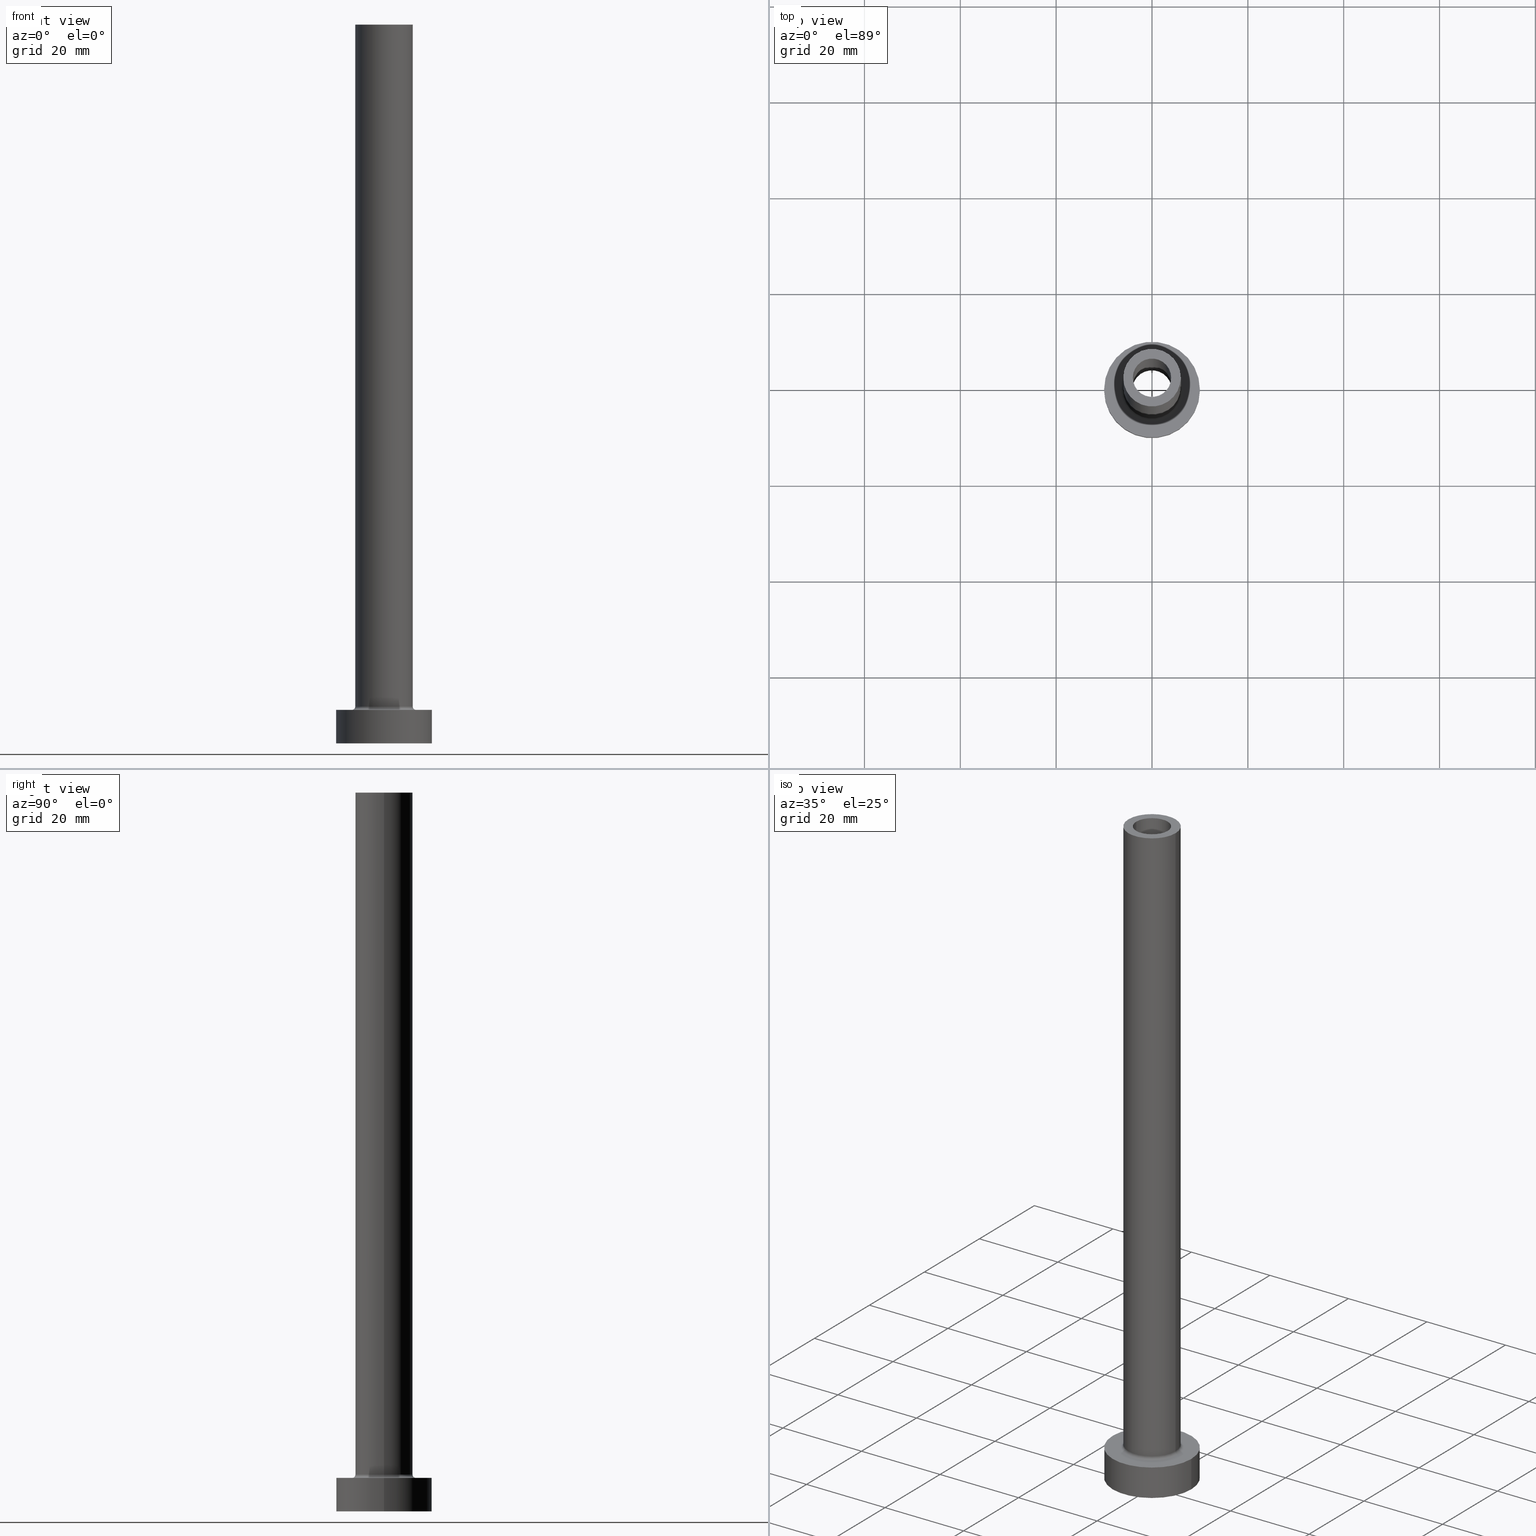
[diagram: canonical four-view strip — front | top / right | iso, engineering-drawing reading convention]
A machine part, canonical four-view strip (front | top / right | iso — engineering-drawing reading convention). The complete STEP part file that produces these views, byte-faithful:
ISO-10303-21;
HEADER;
FILE_DESCRIPTION (( 'STEP AP203' ),
    '1' );
FILE_NAME ('ed72.STEP',
    '2023-02-13T12:46:41',
    ( '' ),
    ( '' ),
    'SwSTEP 2.0',
    'SolidWorks 2019',
    '' );
FILE_SCHEMA (( 'CONFIG_CONTROL_DESIGN' ));
ENDSEC;

DATA;
#1 = APPROVAL_PERSON_ORGANIZATION ( #349, #103, #169 ) ;
#2 = CARTESIAN_POINT ( 'NONE',  ( 0.000000000000000000, 0.000000000000000000, 150.0000000000000000 ) ) ;
#3 = VERTEX_POINT ( 'NONE', #352 ) ;
#4 = DIRECTION ( 'NONE',  ( 0.000000000000000000, 0.000000000000000000, 1.000000000000000000 ) ) ;
#5 = CARTESIAN_POINT ( 'NONE',  ( -4.150000000000000355, 0.000000000000000000, 0.000000000000000000 ) ) ;
#6 = ORIENTED_EDGE ( 'NONE', *, *, #261, .T. ) ;
#7 = CARTESIAN_POINT ( 'NONE',  ( 0.000000000000000000, 0.000000000000000000, 7.000000000000000000 ) ) ;
#8 = ORIENTED_EDGE ( 'NONE', *, *, #261, .F. ) ;
#9 = DIRECTION ( 'NONE',  ( 0.000000000000000000, 0.000000000000000000, 1.000000000000000000 ) ) ;
#10 = LINE ( 'NONE', #255, #165 ) ;
#11 = ORIENTED_EDGE ( 'NONE', *, *, #305, .T. ) ;
#12 = SHAPE_DEFINITION_REPRESENTATION ( #25, #225 ) ;
#13 = CALENDAR_DATE ( 2023, 13, 2 ) ;
#14 = AXIS2_PLACEMENT_3D ( 'NONE', #163, #100, #298 ) ;
#15 = EDGE_LOOP ( 'NONE', ( #11, #417 ) ) ;
#16 = EDGE_CURVE ( 'NONE', #354, #322, #129, .T. ) ;
#17 = CARTESIAN_POINT ( 'NONE',  ( 0.000000000000000000, 0.000000000000000000, 0.000000000000000000 ) ) ;
#18 = APPLICATION_CONTEXT ( 'configuration controlled 3d designs of mechanical parts and assemblies' ) ;
#19 = VERTEX_POINT ( 'NONE', #204 ) ;
#20 = ORIENTED_EDGE ( 'NONE', *, *, #192, .F. ) ;
#21 = DIRECTION ( 'NONE',  ( 0.000000000000000000, 0.000000000000000000, -1.000000000000000000 ) ) ;
#22 = CARTESIAN_POINT ( 'NONE',  ( -4.000000000000000000, 0.000000000000000000, 105.0000000000000000 ) ) ;
#23 = EDGE_CURVE ( 'NONE', #72, #382, #350, .T. ) ;
#24 = CARTESIAN_POINT ( 'NONE',  ( 0.000000000000000000, 0.000000000000000000, 7.000000000000000000 ) ) ;
#25 = PRODUCT_DEFINITION_SHAPE ( 'NONE', 'NONE',  #162 ) ;
#26 = DIRECTION ( 'NONE',  ( 0.000000000000000000, 0.000000000000000000, -1.000000000000000000 ) ) ;
#27 = AXIS2_PLACEMENT_3D ( 'NONE', #217, #134, #176 ) ;
#28 = ORIENTED_EDGE ( 'NONE', *, *, #71, .F. ) ;
#29 = CARTESIAN_POINT ( 'NONE',  ( 0.000000000000000000, 0.000000000000000000, 7.000000000000000000 ) ) ;
#30 = DIRECTION ( 'NONE',  ( 1.000000000000000000, 0.000000000000000000, 0.000000000000000000 ) ) ;
#31 = FACE_OUTER_BOUND ( 'NONE', #420, .T. ) ;
#32 = CARTESIAN_POINT ( 'NONE',  ( 0.000000000000000000, 0.000000000000000000, 7.700000000000012612 ) ) ;
#33 = EDGE_LOOP ( 'NONE', ( #325, #45, #323, #391 ) ) ;
#34 = DIRECTION ( 'NONE',  ( 1.000000000000000000, 0.000000000000000000, 0.000000000000000000 ) ) ;
#35 = AXIS2_PLACEMENT_3D ( 'NONE', #131, #99, #448 ) ;
#36 = FACE_OUTER_BOUND ( 'NONE', #105, .T. ) ;
#37 = CC_DESIGN_PERSON_AND_ORGANIZATION_ASSIGNMENT ( #128, #269, ( #162 ) ) ;
#38 = ORIENTED_EDGE ( 'NONE', *, *, #439, .F. ) ;
#39 = LOCAL_TIME ( 13, 46, 41.00000000000000000, #185 ) ;
#40 = CARTESIAN_POINT ( 'NONE',  ( 0.000000000000000000, 0.000000000000000000, 105.0000000000000000 ) ) ;
#41 = EDGE_LOOP ( 'NONE', ( #342, #46, #203, #433 ) ) ;
#42 = DIRECTION ( 'NONE',  ( 0.000000000000000000, 0.000000000000000000, 1.000000000000000000 ) ) ;
#43 = DIRECTION ( 'NONE',  ( 0.000000000000000000, 0.000000000000000000, 1.000000000000000000 ) ) ;
#44 = DIRECTION ( 'NONE',  ( 1.000000000000000000, 0.000000000000000000, 0.000000000000000000 ) ) ;
#45 = ORIENTED_EDGE ( 'NONE', *, *, #95, .T. ) ;
#46 = ORIENTED_EDGE ( 'NONE', *, *, #244, .T. ) ;
#47 = CARTESIAN_POINT ( 'NONE',  ( 4.150000000000000355, 5.082284216461515156E-16, 105.0000000000000000 ) ) ;
#48 = FACE_OUTER_BOUND ( 'NONE', #33, .T. ) ;
#49 = ORIENTED_EDGE ( 'NONE', *, *, #23, .F. ) ;
#50 = CYLINDRICAL_SURFACE ( 'NONE', #158, 10.00000000000000000 ) ;
#51 = AXIS2_PLACEMENT_3D ( 'NONE', #40, #4, #61 ) ;
#52 = EDGE_CURVE ( 'NONE', #358, #214, #456, .T. ) ;
#53 = ORIENTED_EDGE ( 'NONE', *, *, #244, .F. ) ;
#54 = FACE_OUTER_BOUND ( 'NONE', #208, .T. ) ;
#55 = DATE_AND_TIME ( #13, #279 ) ;
#56 = CC_DESIGN_DATE_AND_TIME_ASSIGNMENT ( #419, #387, ( #162 ) ) ;
#57 = LINE ( 'NONE', #193, #309 ) ;
#58 = ADVANCED_FACE ( 'NONE', ( #355, #137 ), #170, .T. ) ;
#59 = DESIGN_CONTEXT ( 'detailed design', #109, 'design' ) ;
#60 = DIRECTION ( 'NONE',  ( 1.000000000000000000, 0.000000000000000000, 0.000000000000000000 ) ) ;
#61 = DIRECTION ( 'NONE',  ( 1.000000000000000000, 0.000000000000000000, -0.000000000000000000 ) ) ;
#62 = PERSON_AND_ORGANIZATION_ROLE ( 'design_supplier' ) ;
#63 = ORIENTED_EDGE ( 'NONE', *, *, #413, .F. ) ;
#64 = DIRECTION ( 'NONE',  ( -0.000000000000000000, -0.000000000000000000, -1.000000000000000000 ) ) ;
#65 = AXIS2_PLACEMENT_3D ( 'NONE', #29, #64, #125 ) ;
#66 = APPROVAL_PERSON_ORGANIZATION ( #206, #430, #290 ) ;
#67 = ORIENTED_EDGE ( 'NONE', *, *, #361, .F. ) ;
#68 = LINE ( 'NONE', #451, #195 ) ;
#69 = VERTEX_POINT ( 'NONE', #229 ) ;
#70 = DIRECTION ( 'NONE',  ( -0.000000000000000000, -0.000000000000000000, -1.000000000000000000 ) ) ;
#71 = EDGE_CURVE ( 'NONE', #214, #316, #10, .T. ) ;
#72 = VERTEX_POINT ( 'NONE', #294 ) ;
#73 = EDGE_LOOP ( 'NONE', ( #67, #411, #428, #312 ) ) ;
#74 = DIRECTION ( 'NONE',  ( 0.000000000000000000, 0.000000000000000000, 1.000000000000000000 ) ) ;
#75 = CARTESIAN_POINT ( 'NONE',  ( 0.000000000000000000, 0.000000000000000000, 150.0000000000000000 ) ) ;
#76 = VERTEX_POINT ( 'NONE', #384 ) ;
#77 = CYLINDRICAL_SURFACE ( 'NONE', #27, 4.150000000000000355 ) ;
#78 = DIRECTION ( 'NONE',  ( 1.000000000000000000, 0.000000000000000000, 0.000000000000000000 ) ) ;
#79 = DIRECTION ( 'NONE',  ( 0.000000000000000000, 0.000000000000000000, -1.000000000000000000 ) ) ;
#80 = VECTOR ( 'NONE', #200, 1000.000000000000000 ) ;
#81 = DIRECTION ( 'NONE',  ( 0.000000000000000000, 0.000000000000000000, 1.000000000000000000 ) ) ;
#82 = PERSON_AND_ORGANIZATION ( #235, #181 ) ;
#83 = CC_DESIGN_PERSON_AND_ORGANIZATION_ASSIGNMENT ( #82, #62, ( #123 ) ) ;
#84 = ORIENTED_EDGE ( 'NONE', *, *, #305, .F. ) ;
#85 = DIRECTION ( 'NONE',  ( 0.000000000000000000, 0.000000000000000000, -1.000000000000000000 ) ) ;
#86 = CALENDAR_DATE ( 2023, 13, 2 ) ;
#87 = CARTESIAN_POINT ( 'NONE',  ( -4.150000000000000355, 0.000000000000000000, 116.7379725676966729 ) ) ;
#88 = AXIS2_PLACEMENT_3D ( 'NONE', #7, #70, #455 ) ;
#89 = VERTEX_POINT ( 'NONE', #457 ) ;
#90 = LOCAL_TIME ( 13, 46, 41.00000000000000000, #132 ) ;
#91 = CARTESIAN_POINT ( 'NONE',  ( 0.000000000000000000, 0.000000000000000000, 150.0000000000000000 ) ) ;
#92 = ORIENTED_EDGE ( 'NONE', *, *, #145, .T. ) ;
#93 = AXIS2_PLACEMENT_3D ( 'NONE', #280, #250, #216 ) ;
#94 = CARTESIAN_POINT ( 'NONE',  ( 0.000000000000000000, 0.000000000000000000, 150.0000000000000000 ) ) ;
#95 = EDGE_CURVE ( 'NONE', #273, #322, #367, .T. ) ;
#96 = AXIS2_PLACEMENT_3D ( 'NONE', #380, #199, #301 ) ;
#97 = CARTESIAN_POINT ( 'NONE',  ( -10.00000000000000000, 0.000000000000000000, 7.000000000000000000 ) ) ;
#98 = ADVANCED_FACE ( 'NONE', ( #31 ), #166, .F. ) ;
#99 = DIRECTION ( 'NONE',  ( 1.224646799147353207E-16, 1.000000000000000000, -0.000000000000000000 ) ) ;
#100 = DIRECTION ( 'NONE',  ( 0.000000000000000000, 0.000000000000000000, 1.000000000000000000 ) ) ;
#101 = CALENDAR_DATE ( 2023, 13, 2 ) ;
#102 = ORIENTED_EDGE ( 'NONE', *, *, #160, .T. ) ;
#103 = APPROVAL ( #454, 'NEUR�EN�' ) ;
#104 = MECHANICAL_CONTEXT ( 'NONE', #18, 'mechanical' ) ;
#105 = EDGE_LOOP ( 'NONE', ( #175, #383 ) ) ;
#106 = DIRECTION ( 'NONE',  ( 1.000000000000000000, 0.000000000000000000, -0.000000000000000000 ) ) ;
#107 = DATE_AND_TIME ( #168, #249 ) ;
#108 = DIRECTION ( 'NONE',  ( 0.000000000000000000, 0.000000000000000000, 1.000000000000000000 ) ) ;
#109 = APPLICATION_CONTEXT ( 'configuration controlled 3d designs of mechanical parts and assemblies' ) ;
#110 = CIRCLE ( 'NONE', #363, 6.000000000000000888 ) ;
#111 = DIRECTION ( 'NONE',  ( 1.000000000000000000, 0.000000000000000000, 0.000000000000000000 ) ) ;
#112 = EDGE_LOOP ( 'NONE', ( #228, #396, #222, #63 ) ) ;
#113 = CC_DESIGN_PERSON_AND_ORGANIZATION_ASSIGNMENT ( #231, #371, ( #123 ) ) ;
#114 = CIRCLE ( 'NONE', #119, 4.150000000000000355 ) ;
#115 = AXIS2_PLACEMENT_3D ( 'NONE', #319, #246, #139 ) ;
#116 = ORIENTED_EDGE ( 'NONE', *, *, #138, .F. ) ;
#117 = PERSON_AND_ORGANIZATION_ROLE ( 'classification_officer' ) ;
#118 = CARTESIAN_POINT ( 'NONE',  ( 0.000000000000000000, 0.000000000000000000, 0.000000000000000000 ) ) ;
#119 = AXIS2_PLACEMENT_3D ( 'NONE', #317, #42, #78 ) ;
#120 = CYLINDRICAL_SURFACE ( 'NONE', #345, 4.000000000000000000 ) ;
#121 = DIRECTION ( 'NONE',  ( 1.000000000000000000, 0.000000000000000000, 0.000000000000000000 ) ) ;
#122 = DIRECTION ( 'NONE',  ( 1.000000000000000000, 0.000000000000000000, 0.000000000000000000 ) ) ;
#123 = PRODUCT_DEFINITION_FORMATION_WITH_SPECIFIED_SOURCE ( 'LIBOVOLN�', '', #442, .NOT_KNOWN. ) ;
#124 = ADVANCED_FACE ( 'NONE', ( #223 ), #277, .T. ) ;
#125 = DIRECTION ( 'NONE',  ( -1.000000000000000000, 0.000000000000000000, 0.000000000000000000 ) ) ;
#126 = DIRECTION ( 'NONE',  ( 0.000000000000000000, 0.000000000000000000, 1.000000000000000000 ) ) ;
#127 = APPROVAL ( #366, 'NEUR�EN�' ) ;
#128 = PERSON_AND_ORGANIZATION ( #235, #181 ) ;
#129 = CIRCLE ( 'NONE', #88, 6.700000000000001066 ) ;
#130 = DIRECTION ( 'NONE',  ( -1.000000000000000000, 0.000000000000000000, 0.000000000000000000 ) ) ;
#131 = CARTESIAN_POINT ( 'NONE',  ( -6.700000000000001066, 8.205133554287267548E-16, 7.700000000000012612 ) ) ;
#132 = COORDINATED_UNIVERSAL_TIME_OFFSET ( 1, 0, .AHEAD. ) ;
#133 = AXIS2_PLACEMENT_3D ( 'NONE', #2, #108, #314 ) ;
#134 = DIRECTION ( 'NONE',  ( 0.000000000000000000, 0.000000000000000000, -1.000000000000000000 ) ) ;
#135 = APPLICATION_PROTOCOL_DEFINITION ( 'international standard', 'config_control_design', 1994, #109 ) ;
#136 = DIRECTION ( 'NONE',  ( -0.000000000000000000, -0.000000000000000000, -1.000000000000000000 ) ) ;
#137 = FACE_OUTER_BOUND ( 'NONE', #179, .T. ) ;
#138 = EDGE_CURVE ( 'NONE', #382, #89, #164, .T. ) ;
#139 = DIRECTION ( 'NONE',  ( 1.000000000000000000, 0.000000000000000000, 0.000000000000000000 ) ) ;
#140 = AXIS2_PLACEMENT_3D ( 'NONE', #91, #336, #60 ) ;
#141 = CIRCLE ( 'NONE', #370, 4.000000000000000000 ) ;
#142 = EDGE_LOOP ( 'NONE', ( #360, #147 ) ) ;
#143 = ADVANCED_FACE ( 'NONE', ( #48 ), #353, .F. ) ;
#144 = CARTESIAN_POINT ( 'NONE',  ( 0.000000000000000000, 0.000000000000000000, 105.0000000000000000 ) ) ;
#145 = EDGE_CURVE ( 'NONE', #273, #19, #416, .T. ) ;
#146 = FACE_BOUND ( 'NONE', #304, .T. ) ;
#147 = ORIENTED_EDGE ( 'NONE', *, *, #459, .F. ) ;
#148 = CC_DESIGN_APPROVAL ( #430, ( #123 ) ) ;
#149 = CARTESIAN_POINT ( 'NONE',  ( 0.000000000000000000, 0.000000000000000000, 116.7379725676966729 ) ) ;
#150 = DATE_AND_TIME ( #86, #39 ) ;
#151 = DIRECTION ( 'NONE',  ( 1.000000000000000000, 0.000000000000000000, 0.000000000000000000 ) ) ;
#152 = CARTESIAN_POINT ( 'NONE',  ( 10.00000000000000000, 1.224646799147353256E-15, 0.000000000000000000 ) ) ;
#153 = DIRECTION ( 'NONE',  ( 0.000000000000000000, -1.000000000000000000, 0.000000000000000000 ) ) ;
#154 = APPROVAL_ROLE ( '' ) ;
#155 = DIRECTION ( 'NONE',  ( 1.000000000000000000, 0.000000000000000000, -0.000000000000000000 ) ) ;
#156 = ORIENTED_EDGE ( 'NONE', *, *, #439, .T. ) ;
#157 = AXIS2_PLACEMENT_3D ( 'NONE', #264, #153, #260 ) ;
#158 = AXIS2_PLACEMENT_3D ( 'NONE', #209, #136, #274 ) ;
#159 = CARTESIAN_POINT ( 'NONE',  ( -10.00000000000000000, 0.000000000000000000, 0.000000000000000000 ) ) ;
#160 = EDGE_CURVE ( 'NONE', #316, #452, #385, .T. ) ;
#161 = DIRECTION ( 'NONE',  ( 0.000000000000000000, 0.000000000000000000, 1.000000000000000000 ) ) ;
#162 = PRODUCT_DEFINITION ( 'NEZN�M�', '', #123, #59 ) ;
#163 = CARTESIAN_POINT ( 'NONE',  ( 0.000000000000000000, 0.000000000000000000, 7.700000000000012612 ) ) ;
#164 = CIRCLE ( 'NONE', #431, 4.000000000000000000 ) ;
#165 = VECTOR ( 'NONE', #79, 1000.000000000000000 ) ;
#166 = CYLINDRICAL_SURFACE ( 'NONE', #285, 4.000000000000000000 ) ;
#167 = SECURITY_CLASSIFICATION ( '', '', #190 ) ;
#168 = CALENDAR_DATE ( 2023, 13, 2 ) ;
#169 = APPROVAL_ROLE ( '' ) ;
#170 = PLANE ( 'NONE',  #375 ) ;
#171 = AXIS2_PLACEMENT_3D ( 'NONE', #205, #449, #122 ) ;
#172 = EDGE_CURVE ( 'NONE', #69, #267, #265, .T. ) ;
#173 = CIRCLE ( 'NONE', #115, 6.700000000000001066 ) ;
#174 = CARTESIAN_POINT ( 'NONE',  ( 0.000000000000000000, 0.000000000000000000, 105.0000000000000000 ) ) ;
#175 = ORIENTED_EDGE ( 'NONE', *, *, #52, .F. ) ;
#176 = DIRECTION ( 'NONE',  ( -1.000000000000000000, 0.000000000000000000, 0.000000000000000000 ) ) ;
#177 = ORIENTED_EDGE ( 'NONE', *, *, #207, .F. ) ;
#178 = DIRECTION ( 'NONE',  ( 0.000000000000000000, 0.000000000000000000, 1.000000000000000000 ) ) ;
#179 = EDGE_LOOP ( 'NONE', ( #156, #302 ) ) ;
#180 = AXIS2_PLACEMENT_3D ( 'NONE', #17, #374, #155 ) ;
#181 = ORGANIZATION ( 'NEUR�EN�', 'NEUR�EN�', '' ) ;
#182 = EDGE_LOOP ( 'NONE', ( #232, #407 ) ) ;
#183 = DIRECTION ( 'NONE',  ( 1.000000000000000000, 0.000000000000000000, 0.000000000000000000 ) ) ;
#184 = ORIENTED_EDGE ( 'NONE', *, *, #390, .T. ) ;
#185 = COORDINATED_UNIVERSAL_TIME_OFFSET ( 1, 0, .AHEAD. ) ;
#186 = DIRECTION ( 'NONE',  ( -0.000000000000000000, -0.000000000000000000, -1.000000000000000000 ) ) ;
#187 = AXIS2_PLACEMENT_3D ( 'NONE', #174, #74, #34 ) ;
#188 = CARTESIAN_POINT ( 'NONE',  ( -4.150000000000000355, 0.000000000000000000, 105.0000000000000000 ) ) ;
#189 = CARTESIAN_POINT ( 'NONE',  ( 0.000000000000000000, 0.000000000000000000, 150.0000000000000000 ) ) ;
#190 = SECURITY_CLASSIFICATION_LEVEL ( 'unclassified' ) ;
#191 = LINE ( 'NONE', #412, #202 ) ;
#192 = EDGE_CURVE ( 'NONE', #253, #381, #343, .T. ) ;
#193 = CARTESIAN_POINT ( 'NONE',  ( -6.000000000000000888, 0.000000000000000000, 150.0000000000000000 ) ) ;
#194 = AXIS2_PLACEMENT_3D ( 'NONE', #32, #126, #30 ) ;
#195 = VECTOR ( 'NONE', #348, 1000.000000000000000 ) ;
#196 = AXIS2_PLACEMENT_3D ( 'NONE', #75, #9, #213 ) ;
#197 = CARTESIAN_POINT ( 'NONE',  ( 4.150000000000000355, 5.082284216461515156E-16, 0.000000000000000000 ) ) ;
#198 = CARTESIAN_POINT ( 'NONE',  ( 0.000000000000000000, 0.000000000000000000, 105.0000000000000000 ) ) ;
#199 = DIRECTION ( 'NONE',  ( 0.000000000000000000, 0.000000000000000000, 1.000000000000000000 ) ) ;
#200 = DIRECTION ( 'NONE',  ( -0.000000000000000000, -0.000000000000000000, -1.000000000000000000 ) ) ;
#201 = ORIENTED_EDGE ( 'NONE', *, *, #341, .T. ) ;
#202 = VECTOR ( 'NONE', #335, 1000.000000000000000 ) ;
#203 = ORIENTED_EDGE ( 'NONE', *, *, #405, .T. ) ;
#204 = CARTESIAN_POINT ( 'NONE',  ( 6.000000000000000888, 7.347880794884120722E-16, 7.700000000000012612 ) ) ;
#205 = CARTESIAN_POINT ( 'NONE',  ( 0.000000000000000000, 0.000000000000000000, 0.000000000000000000 ) ) ;
#206 = PERSON_AND_ORGANIZATION ( #235, #181 ) ;
#207 = EDGE_CURVE ( 'NONE', #267, #381, #247, .T. ) ;
#208 = EDGE_LOOP ( 'NONE', ( #28, #201, #6, #184 ) ) ;
#209 = CARTESIAN_POINT ( 'NONE',  ( 0.000000000000000000, 0.000000000000000000, 7.000000000000000000 ) ) ;
#210 = ORIENTED_EDGE ( 'NONE', *, *, #413, .T. ) ;
#211 = PLANE ( 'NONE',  #51 ) ;
#212 = CC_DESIGN_PERSON_AND_ORGANIZATION_ASSIGNMENT ( #334, #117, ( #167 ) ) ;
#213 = DIRECTION ( 'NONE',  ( 1.000000000000000000, 0.000000000000000000, 0.000000000000000000 ) ) ;
#214 = VERTEX_POINT ( 'NONE', #47 ) ;
#215 = ADVANCED_FACE ( 'NONE', ( #146, #234 ), #410, .F. ) ;
#216 = DIRECTION ( 'NONE',  ( -1.000000000000000000, 0.000000000000000000, 0.000000000000000000 ) ) ;
#217 = CARTESIAN_POINT ( 'NONE',  ( 0.000000000000000000, 0.000000000000000000, 116.7379725676966729 ) ) ;
#218 = EDGE_CURVE ( 'NONE', #19, #354, #338, .T. ) ;
#219 = AXIS2_PLACEMENT_3D ( 'NONE', #189, #453, #130 ) ;
#220 = AXIS2_PLACEMENT_3D ( 'NONE', #149, #85, #368 ) ;
#221 = CARTESIAN_POINT ( 'NONE',  ( 0.000000000000000000, 0.000000000000000000, 7.000000000000000000 ) ) ;
#222 = ORIENTED_EDGE ( 'NONE', *, *, #23, .T. ) ;
#223 = FACE_OUTER_BOUND ( 'NONE', #41, .T. ) ;
#224 = EDGE_CURVE ( 'NONE', #315, #273, #57, .T. ) ;
#225 = ADVANCED_BREP_SHAPE_REPRESENTATION ( 'ed72', ( #306, #434 ), #330 ) ;
#226 = FACE_OUTER_BOUND ( 'NONE', #398, .T. ) ;
#227 = FACE_OUTER_BOUND ( 'NONE', #400, .T. ) ;
#228 = ORIENTED_EDGE ( 'NONE', *, *, #321, .F. ) ;
#229 = CARTESIAN_POINT ( 'NONE',  ( -10.00000000000000000, 0.000000000000000000, 7.000000000000000000 ) ) ;
#230 = CC_DESIGN_APPROVAL ( #127, ( #167 ) ) ;
#231 = PERSON_AND_ORGANIZATION ( #235, #181 ) ;
#232 = ORIENTED_EDGE ( 'NONE', *, *, #16, .T. ) ;
#233 = ADVANCED_FACE ( 'NONE', ( #263 ), #120, .F. ) ;
#234 = FACE_OUTER_BOUND ( 'NONE', #329, .T. ) ;
#235 = PERSON ( 'NEUR�EN�', 'NEUR�EN�', 'NEUR�EN�', ('NEUR�EN�'), ('NEUR�EN�'), ('NEUR�EN�') ) ;
#236 = VECTOR ( 'NONE', #422, 1000.000000000000000 ) ;
#237 = CARTESIAN_POINT ( 'NONE',  ( 0.000000000000000000, 0.000000000000000000, 150.0000000000000000 ) ) ;
#238 = AXIS2_PLACEMENT_3D ( 'NONE', #357, #43, #313 ) ;
#239 = CC_DESIGN_SECURITY_CLASSIFICATION ( #167, ( #123 ) ) ;
#240 = EDGE_CURVE ( 'NONE', #72, #76, #318, .T. ) ;
#241 = TOROIDAL_SURFACE ( 'NONE', #460, 6.700000000000001066, 0.6999999999999999556 ) ;
#242 = FACE_OUTER_BOUND ( 'NONE', #331, .T. ) ;
#243 = FACE_OUTER_BOUND ( 'NONE', #73, .T. ) ;
#244 = EDGE_CURVE ( 'NONE', #3, #19, #191, .T. ) ;
#245 = FACE_BOUND ( 'NONE', #418, .T. ) ;
#246 = DIRECTION ( 'NONE',  ( -0.000000000000000000, -0.000000000000000000, -1.000000000000000000 ) ) ;
#247 = CIRCLE ( 'NONE', #238, 10.00000000000000000 ) ;
#248 = CIRCLE ( 'NONE', #133, 6.000000000000000888 ) ;
#249 = LOCAL_TIME ( 13, 46, 41.00000000000000000, #427 ) ;
#250 = DIRECTION ( 'NONE',  ( -0.000000000000000000, -0.000000000000000000, -1.000000000000000000 ) ) ;
#251 = CARTESIAN_POINT ( 'NONE',  ( 10.00000000000000000, 1.224646799147353256E-15, 7.000000000000000000 ) ) ;
#252 = APPLICATION_PROTOCOL_DEFINITION ( 'international standard', 'config_control_design', 1994, #18 ) ;
#253 = VERTEX_POINT ( 'NONE', #289 ) ;
#254 =( NAMED_UNIT ( * ) PLANE_ANGLE_UNIT ( ) SI_UNIT ( $, .RADIAN. ) );
#255 = CARTESIAN_POINT ( 'NONE',  ( 4.150000000000000355, 5.082284216461515156E-16, 116.7379725676966729 ) ) ;
#256 = CC_DESIGN_APPROVAL ( #103, ( #162 ) ) ;
#257 = ORIENTED_EDGE ( 'NONE', *, *, #240, .T. ) ;
#258 = DIRECTION ( 'NONE',  ( 1.000000000000000000, 0.000000000000000000, 0.000000000000000000 ) ) ;
#259 = LINE ( 'NONE', #87, #421 ) ;
#260 = DIRECTION ( 'NONE',  ( 0.000000000000000000, 0.000000000000000000, -1.000000000000000000 ) ) ;
#261 = EDGE_CURVE ( 'NONE', #358, #452, #259, .T. ) ;
#262 = ORIENTED_EDGE ( 'NONE', *, *, #218, .T. ) ;
#263 = FACE_OUTER_BOUND ( 'NONE', #112, .T. ) ;
#264 = CARTESIAN_POINT ( 'NONE',  ( 6.700000000000001066, 0.000000000000000000, 7.700000000000012612 ) ) ;
#265 = LINE ( 'NONE', #97, #80 ) ;
#266 = CARTESIAN_POINT ( 'NONE',  ( -6.000000000000000888, 0.000000000000000000, 150.0000000000000000 ) ) ;
#267 = VERTEX_POINT ( 'NONE', #159 ) ;
#268 = CLOSED_SHELL ( 'NONE', ( #98, #435, #143, #124, #436, #311, #270, #215, #283, #58, #333, #376, #346, #233 ) ) ;
#269 = PERSON_AND_ORGANIZATION_ROLE ( 'creator' ) ;
#270 = ADVANCED_FACE ( 'NONE', ( #292, #438 ), #295, .T. ) ;
#271 = CIRCLE ( 'NONE', #423, 4.150000000000000355 ) ;
#272 = APPROVAL_STATUS ( 'not_yet_approved' ) ;
#273 = VERTEX_POINT ( 'NONE', #406 ) ;
#274 = DIRECTION ( 'NONE',  ( -1.000000000000000000, 0.000000000000000000, 0.000000000000000000 ) ) ;
#275 = CARTESIAN_POINT ( 'NONE',  ( 0.000000000000000000, 0.000000000000000000, 150.0000000000000000 ) ) ;
#276 = ORIENTED_EDGE ( 'NONE', *, *, #224, .T. ) ;
#277 = CYLINDRICAL_SURFACE ( 'NONE', #93, 6.000000000000000888 ) ;
#278 = ORIENTED_EDGE ( 'NONE', *, *, #207, .T. ) ;
#279 = LOCAL_TIME ( 13, 46, 41.00000000000000000, #364 ) ;
#280 = CARTESIAN_POINT ( 'NONE',  ( 0.000000000000000000, 0.000000000000000000, 150.0000000000000000 ) ) ;
#281 = ORIENTED_EDGE ( 'NONE', *, *, #95, .F. ) ;
#282 = ORIENTED_EDGE ( 'NONE', *, *, #390, .F. ) ;
#283 = ADVANCED_FACE ( 'NONE', ( #226 ), #369, .T. ) ;
#284 = ORIENTED_EDGE ( 'NONE', *, *, #160, .F. ) ;
#285 = AXIS2_PLACEMENT_3D ( 'NONE', #94, #299, #386 ) ;
#286 = DIRECTION ( 'NONE',  ( -1.000000000000000000, 0.000000000000000000, 0.000000000000000000 ) ) ;
#287 = CIRCLE ( 'NONE', #96, 10.00000000000000000 ) ;
#288 = ORIENTED_EDGE ( 'NONE', *, *, #405, .F. ) ;
#289 = CARTESIAN_POINT ( 'NONE',  ( 10.00000000000000000, 1.224646799147353256E-15, 7.000000000000000000 ) ) ;
#290 = APPROVAL_ROLE ( '' ) ;
#291 = COORDINATED_UNIVERSAL_TIME_OFFSET ( 1, 0, .AHEAD. ) ;
#292 = FACE_BOUND ( 'NONE', #182, .T. ) ;
#293 = DIRECTION ( 'NONE',  ( 0.000000000000000000, 0.000000000000000000, 1.000000000000000000 ) ) ;
#294 = CARTESIAN_POINT ( 'NONE',  ( -4.000000000000000000, 0.000000000000000000, 150.0000000000000000 ) ) ;
#295 = PLANE ( 'NONE',  #403 ) ;
#296 = CARTESIAN_POINT ( 'NONE',  ( 0.000000000000000000, 0.000000000000000000, 0.000000000000000000 ) ) ;
#297 = FACE_OUTER_BOUND ( 'NONE', #414, .T. ) ;
#298 = DIRECTION ( 'NONE',  ( 1.000000000000000000, 0.000000000000000000, 0.000000000000000000 ) ) ;
#299 = DIRECTION ( 'NONE',  ( 0.000000000000000000, 0.000000000000000000, -1.000000000000000000 ) ) ;
#300 = AXIS2_PLACEMENT_3D ( 'NONE', #296, #447, #121 ) ;
#301 = DIRECTION ( 'NONE',  ( 1.000000000000000000, 0.000000000000000000, 0.000000000000000000 ) ) ;
#302 = ORIENTED_EDGE ( 'NONE', *, *, #399, .T. ) ;
#303 = DIRECTION ( 'NONE',  ( 1.000000000000000000, 0.000000000000000000, 0.000000000000000000 ) ) ;
#304 = EDGE_LOOP ( 'NONE', ( #282, #284 ) ) ;
#305 = EDGE_CURVE ( 'NONE', #69, #253, #287, .T. ) ;
#306 = MANIFOLD_SOLID_BREP ( 'Odebrat vysunut�m4', #268 ) ;
#307 = APPROVAL_DATE_TIME ( #107, #103 ) ;
#308 = ORIENTED_EDGE ( 'NONE', *, *, #52, .T. ) ;
#309 = VECTOR ( 'NONE', #186, 1000.000000000000000 ) ;
#310 = CIRCLE ( 'NONE', #339, 10.00000000000000000 ) ;
#311 = ADVANCED_FACE ( 'NONE', ( #242 ), #377, .T. ) ;
#312 = ORIENTED_EDGE ( 'NONE', *, *, #172, .F. ) ;
#313 = DIRECTION ( 'NONE',  ( 1.000000000000000000, 0.000000000000000000, 0.000000000000000000 ) ) ;
#314 = DIRECTION ( 'NONE',  ( 1.000000000000000000, 0.000000000000000000, 0.000000000000000000 ) ) ;
#315 = VERTEX_POINT ( 'NONE', #266 ) ;
#316 = VERTEX_POINT ( 'NONE', #197 ) ;
#317 = CARTESIAN_POINT ( 'NONE',  ( 0.000000000000000000, 0.000000000000000000, 105.0000000000000000 ) ) ;
#318 = CIRCLE ( 'NONE', #140, 4.000000000000000000 ) ;
#319 = CARTESIAN_POINT ( 'NONE',  ( 0.000000000000000000, 0.000000000000000000, 7.000000000000000000 ) ) ;
#320 = ORIENTED_EDGE ( 'NONE', *, *, #71, .T. ) ;
#321 = EDGE_CURVE ( 'NONE', #76, #89, #68, .T. ) ;
#322 = VERTEX_POINT ( 'NONE', #340 ) ;
#323 = ORIENTED_EDGE ( 'NONE', *, *, #16, .F. ) ;
#324 = APPROVAL_DATE_TIME ( #150, #127 ) ;
#325 = ORIENTED_EDGE ( 'NONE', *, *, #145, .F. ) ;
#326 =( NAMED_UNIT ( * ) SI_UNIT ( $, .STERADIAN. ) SOLID_ANGLE_UNIT ( ) );
#327 = CYLINDRICAL_SURFACE ( 'NONE', #220, 4.150000000000000355 ) ;
#328 = CALENDAR_DATE ( 2023, 13, 2 ) ;
#329 = EDGE_LOOP ( 'NONE', ( #177, #395 ) ) ;
#330 =( GEOMETRIC_REPRESENTATION_CONTEXT ( 3 ) GLOBAL_UNCERTAINTY_ASSIGNED_CONTEXT ( ( #415 ) ) GLOBAL_UNIT_ASSIGNED_CONTEXT ( ( #432, #254, #326 ) ) REPRESENTATION_CONTEXT ( 'NONE', 'WORKASPACE' ) );
#331 = EDGE_LOOP ( 'NONE', ( #20, #84, #356, #278 ) ) ;
#332 = CARTESIAN_POINT ( 'NONE',  ( 0.000000000000000000, 0.000000000000000000, 150.0000000000000000 ) ) ;
#333 = ADVANCED_FACE ( 'NONE', ( #297 ), #241, .F. ) ;
#334 = PERSON_AND_ORGANIZATION ( #235, #181 ) ;
#335 = DIRECTION ( 'NONE',  ( -0.000000000000000000, -0.000000000000000000, -1.000000000000000000 ) ) ;
#336 = DIRECTION ( 'NONE',  ( 0.000000000000000000, 0.000000000000000000, 1.000000000000000000 ) ) ;
#337 = APPROVAL_DATE_TIME ( #55, #430 ) ;
#338 = CIRCLE ( 'NONE', #157, 0.7000000000000000666 ) ;
#339 = AXIS2_PLACEMENT_3D ( 'NONE', #221, #408, #437 ) ;
#340 = CARTESIAN_POINT ( 'NONE',  ( -6.700000000000001066, 8.205133554287267548E-16, 7.000000000000006217 ) ) ;
#341 = EDGE_CURVE ( 'NONE', #214, #358, #114, .T. ) ;
#342 = ORIENTED_EDGE ( 'NONE', *, *, #399, .F. ) ;
#343 = LINE ( 'NONE', #251, #362 ) ;
#344 = ORIENTED_EDGE ( 'NONE', *, *, #321, .T. ) ;
#345 = AXIS2_PLACEMENT_3D ( 'NONE', #332, #21, #286 ) ;
#346 = ADVANCED_FACE ( 'NONE', ( #245, #36 ), #211, .F. ) ;
#347 = APPROVAL_PERSON_ORGANIZATION ( #409, #127, #154 ) ;
#348 = DIRECTION ( 'NONE',  ( 0.000000000000000000, 0.000000000000000000, -1.000000000000000000 ) ) ;
#349 = PERSON_AND_ORGANIZATION ( #235, #181 ) ;
#350 = LINE ( 'NONE', #429, #236 ) ;
#351 = CC_DESIGN_PERSON_AND_ORGANIZATION_ASSIGNMENT ( #458, #397, ( #442 ) ) ;
#352 = CARTESIAN_POINT ( 'NONE',  ( 6.000000000000000888, 7.347880794884120722E-16, 150.0000000000000000 ) ) ;
#353 = TOROIDAL_SURFACE ( 'NONE', #194, 6.700000000000001066, 0.6999999999999999556 ) ;
#354 = VERTEX_POINT ( 'NONE', #365 ) ;
#355 = FACE_BOUND ( 'NONE', #142, .T. ) ;
#356 = ORIENTED_EDGE ( 'NONE', *, *, #172, .T. ) ;
#357 = CARTESIAN_POINT ( 'NONE',  ( 0.000000000000000000, 0.000000000000000000, 0.000000000000000000 ) ) ;
#358 = VERTEX_POINT ( 'NONE', #188 ) ;
#359 = DIRECTION ( 'NONE',  ( 0.000000000000000000, 0.000000000000000000, 1.000000000000000000 ) ) ;
#360 = ORIENTED_EDGE ( 'NONE', *, *, #240, .F. ) ;
#361 = EDGE_CURVE ( 'NONE', #253, #69, #310, .T. ) ;
#362 = VECTOR ( 'NONE', #393, 1000.000000000000000 ) ;
#363 = AXIS2_PLACEMENT_3D ( 'NONE', #372, #293, #151 ) ;
#364 = COORDINATED_UNIVERSAL_TIME_OFFSET ( 1, 0, .AHEAD. ) ;
#365 = CARTESIAN_POINT ( 'NONE',  ( 6.700000000000001066, 0.000000000000000000, 7.000000000000006217 ) ) ;
#366 = APPROVAL_STATUS ( 'not_yet_approved' ) ;
#367 = CIRCLE ( 'NONE', #35, 0.7000000000000000666 ) ;
#368 = DIRECTION ( 'NONE',  ( -1.000000000000000000, 0.000000000000000000, 0.000000000000000000 ) ) ;
#369 = CYLINDRICAL_SURFACE ( 'NONE', #219, 6.000000000000000888 ) ;
#370 = AXIS2_PLACEMENT_3D ( 'NONE', #198, #161, #440 ) ;
#371 = PERSON_AND_ORGANIZATION_ROLE ( 'creator' ) ;
#372 = CARTESIAN_POINT ( 'NONE',  ( 0.000000000000000000, 0.000000000000000000, 7.700000000000012612 ) ) ;
#373 = DATE_AND_TIME ( #328, #378 ) ;
#374 = DIRECTION ( 'NONE',  ( 0.000000000000000000, 0.000000000000000000, 1.000000000000000000 ) ) ;
#375 = AXIS2_PLACEMENT_3D ( 'NONE', #275, #425, #106 ) ;
#376 = ADVANCED_FACE ( 'NONE', ( #54 ), #327, .F. ) ;
#377 = CYLINDRICAL_SURFACE ( 'NONE', #65, 10.00000000000000000 ) ;
#378 = LOCAL_TIME ( 13, 46, 41.00000000000000000, #291 ) ;
#379 = DIRECTION ( 'NONE',  ( -0.000000000000000000, -0.000000000000000000, -1.000000000000000000 ) ) ;
#380 = CARTESIAN_POINT ( 'NONE',  ( 0.000000000000000000, 0.000000000000000000, 7.000000000000000000 ) ) ;
#381 = VERTEX_POINT ( 'NONE', #152 ) ;
#382 = VERTEX_POINT ( 'NONE', #22 ) ;
#383 = ORIENTED_EDGE ( 'NONE', *, *, #341, .F. ) ;
#384 = CARTESIAN_POINT ( 'NONE',  ( 4.000000000000000000, 4.898587196589411843E-16, 150.0000000000000000 ) ) ;
#385 = CIRCLE ( 'NONE', #171, 4.150000000000000355 ) ;
#386 = DIRECTION ( 'NONE',  ( -1.000000000000000000, 0.000000000000000000, 0.000000000000000000 ) ) ;
#387 = DATE_TIME_ROLE ( 'creation_date' ) ;
#388 = CARTESIAN_POINT ( 'NONE',  ( 0.000000000000000000, 0.000000000000000000, 0.000000000000000000 ) ) ;
#389 = ORIENTED_EDGE ( 'NONE', *, *, #138, .T. ) ;
#390 = EDGE_CURVE ( 'NONE', #452, #316, #271, .T. ) ;
#391 = ORIENTED_EDGE ( 'NONE', *, *, #218, .F. ) ;
#392 = CIRCLE ( 'NONE', #300, 10.00000000000000000 ) ;
#393 = DIRECTION ( 'NONE',  ( -0.000000000000000000, -0.000000000000000000, -1.000000000000000000 ) ) ;
#394 = PRODUCT_RELATED_PRODUCT_CATEGORY ( 'detail', '', ( #442 ) ) ;
#395 = ORIENTED_EDGE ( 'NONE', *, *, #426, .F. ) ;
#396 = ORIENTED_EDGE ( 'NONE', *, *, #459, .T. ) ;
#397 = PERSON_AND_ORGANIZATION_ROLE ( 'design_owner' ) ;
#398 = EDGE_LOOP ( 'NONE', ( #53, #38, #276, #92 ) ) ;
#399 = EDGE_CURVE ( 'NONE', #3, #315, #450, .T. ) ;
#400 = EDGE_LOOP ( 'NONE', ( #308, #320, #102, #8 ) ) ;
#401 = CARTESIAN_POINT ( 'NONE',  ( 0.000000000000000000, 0.000000000000000000, 7.700000000000012612 ) ) ;
#402 = CC_DESIGN_DATE_AND_TIME_ASSIGNMENT ( #373, #441, ( #167 ) ) ;
#403 = AXIS2_PLACEMENT_3D ( 'NONE', #24, #443, #446 ) ;
#404 = CIRCLE ( 'NONE', #196, 4.000000000000000000 ) ;
#405 = EDGE_CURVE ( 'NONE', #19, #273, #110, .T. ) ;
#406 = CARTESIAN_POINT ( 'NONE',  ( -6.000000000000000888, 0.000000000000000000, 7.700000000000012612 ) ) ;
#407 = ORIENTED_EDGE ( 'NONE', *, *, #444, .T. ) ;
#408 = DIRECTION ( 'NONE',  ( 0.000000000000000000, 0.000000000000000000, 1.000000000000000000 ) ) ;
#409 = PERSON_AND_ORGANIZATION ( #235, #181 ) ;
#410 = PLANE ( 'NONE',  #180 ) ;
#411 = ORIENTED_EDGE ( 'NONE', *, *, #192, .T. ) ;
#412 = CARTESIAN_POINT ( 'NONE',  ( 6.000000000000000888, 7.347880794884120722E-16, 150.0000000000000000 ) ) ;
#413 = EDGE_CURVE ( 'NONE', #89, #382, #141, .T. ) ;
#414 = EDGE_LOOP ( 'NONE', ( #281, #288, #262, #461 ) ) ;
#415 = UNCERTAINTY_MEASURE_WITH_UNIT (LENGTH_MEASURE( 1.000000000000000082E-05 ), #432, 'distance_accuracy_value', 'NONE');
#416 = CIRCLE ( 'NONE', #14, 6.000000000000000888 ) ;
#417 = ORIENTED_EDGE ( 'NONE', *, *, #361, .T. ) ;
#418 = EDGE_LOOP ( 'NONE', ( #389, #210 ) ) ;
#419 = DATE_AND_TIME ( #101, #90 ) ;
#420 = EDGE_LOOP ( 'NONE', ( #257, #344, #116, #49 ) ) ;
#421 = VECTOR ( 'NONE', #26, 1000.000000000000000 ) ;
#422 = DIRECTION ( 'NONE',  ( 0.000000000000000000, 0.000000000000000000, -1.000000000000000000 ) ) ;
#423 = AXIS2_PLACEMENT_3D ( 'NONE', #118, #379, #303 ) ;
#424 = DIRECTION ( 'NONE',  ( 0.000000000000000000, 0.000000000000000000, 1.000000000000000000 ) ) ;
#425 = DIRECTION ( 'NONE',  ( 0.000000000000000000, 0.000000000000000000, 1.000000000000000000 ) ) ;
#426 = EDGE_CURVE ( 'NONE', #381, #267, #392, .T. ) ;
#427 = COORDINATED_UNIVERSAL_TIME_OFFSET ( 1, 0, .AHEAD. ) ;
#428 = ORIENTED_EDGE ( 'NONE', *, *, #426, .T. ) ;
#429 = CARTESIAN_POINT ( 'NONE',  ( -4.000000000000000000, 0.000000000000000000, 150.0000000000000000 ) ) ;
#430 = APPROVAL ( #272, 'NEUR�EN�' ) ;
#431 = AXIS2_PLACEMENT_3D ( 'NONE', #144, #359, #111 ) ;
#432 =( LENGTH_UNIT ( ) NAMED_UNIT ( * ) SI_UNIT ( .MILLI., .METRE. ) );
#433 = ORIENTED_EDGE ( 'NONE', *, *, #224, .F. ) ;
#434 = AXIS2_PLACEMENT_3D ( 'NONE', #388, #424, #44 ) ;
#435 = ADVANCED_FACE ( 'NONE', ( #227 ), #77, .F. ) ;
#436 = ADVANCED_FACE ( 'NONE', ( #243 ), #50, .T. ) ;
#437 = DIRECTION ( 'NONE',  ( 1.000000000000000000, 0.000000000000000000, 0.000000000000000000 ) ) ;
#438 = FACE_OUTER_BOUND ( 'NONE', #15, .T. ) ;
#439 = EDGE_CURVE ( 'NONE', #315, #3, #248, .T. ) ;
#440 = DIRECTION ( 'NONE',  ( 1.000000000000000000, 0.000000000000000000, 0.000000000000000000 ) ) ;
#441 = DATE_TIME_ROLE ( 'classification_date' ) ;
#442 = PRODUCT ( 'ed72', 'ed72', '', ( #104 ) ) ;
#443 = DIRECTION ( 'NONE',  ( 0.000000000000000000, 0.000000000000000000, 1.000000000000000000 ) ) ;
#444 = EDGE_CURVE ( 'NONE', #322, #354, #173, .T. ) ;
#445 = AXIS2_PLACEMENT_3D ( 'NONE', #237, #81, #258 ) ;
#446 = DIRECTION ( 'NONE',  ( 1.000000000000000000, 0.000000000000000000, -0.000000000000000000 ) ) ;
#447 = DIRECTION ( 'NONE',  ( 0.000000000000000000, 0.000000000000000000, 1.000000000000000000 ) ) ;
#448 = DIRECTION ( 'NONE',  ( -1.000000000000000000, 1.224646799147353454E-16, 0.000000000000000000 ) ) ;
#449 = DIRECTION ( 'NONE',  ( -0.000000000000000000, -0.000000000000000000, -1.000000000000000000 ) ) ;
#450 = CIRCLE ( 'NONE', #445, 6.000000000000000888 ) ;
#451 = CARTESIAN_POINT ( 'NONE',  ( 4.000000000000000000, 4.898587196589411843E-16, 150.0000000000000000 ) ) ;
#452 = VERTEX_POINT ( 'NONE', #5 ) ;
#453 = DIRECTION ( 'NONE',  ( -0.000000000000000000, -0.000000000000000000, -1.000000000000000000 ) ) ;
#454 = APPROVAL_STATUS ( 'not_yet_approved' ) ;
#455 = DIRECTION ( 'NONE',  ( 1.000000000000000000, 0.000000000000000000, 0.000000000000000000 ) ) ;
#456 = CIRCLE ( 'NONE', #187, 4.150000000000000355 ) ;
#457 = CARTESIAN_POINT ( 'NONE',  ( 4.000000000000000000, 4.898587196589411843E-16, 105.0000000000000000 ) ) ;
#458 = PERSON_AND_ORGANIZATION ( #235, #181 ) ;
#459 = EDGE_CURVE ( 'NONE', #76, #72, #404, .T. ) ;
#460 = AXIS2_PLACEMENT_3D ( 'NONE', #401, #178, #183 ) ;
#461 = ORIENTED_EDGE ( 'NONE', *, *, #444, .F. ) ;
ENDSEC;
END-ISO-10303-21;
